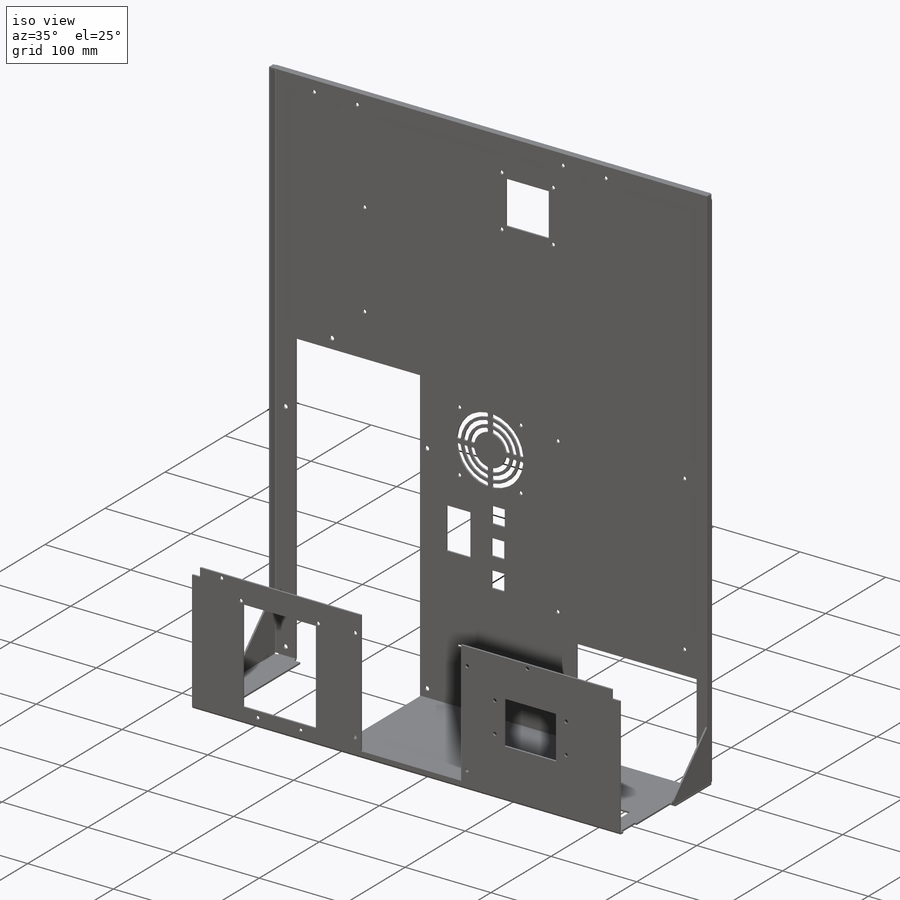
[diagram: iso view]
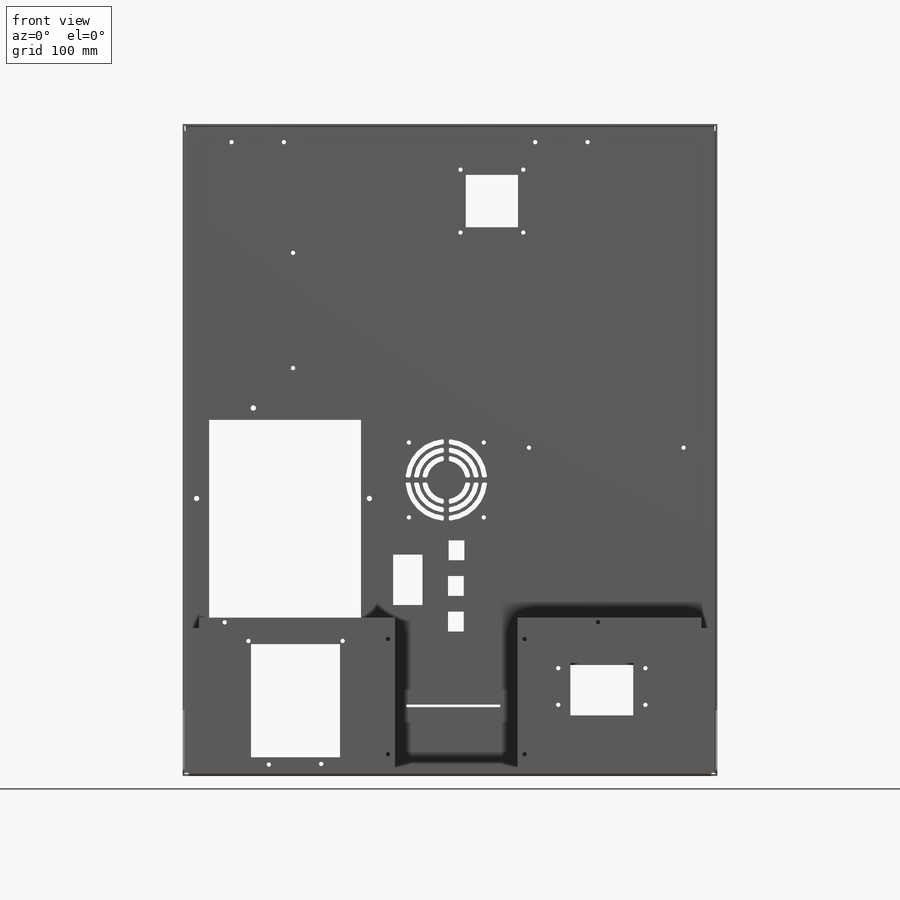
[diagram: front view]
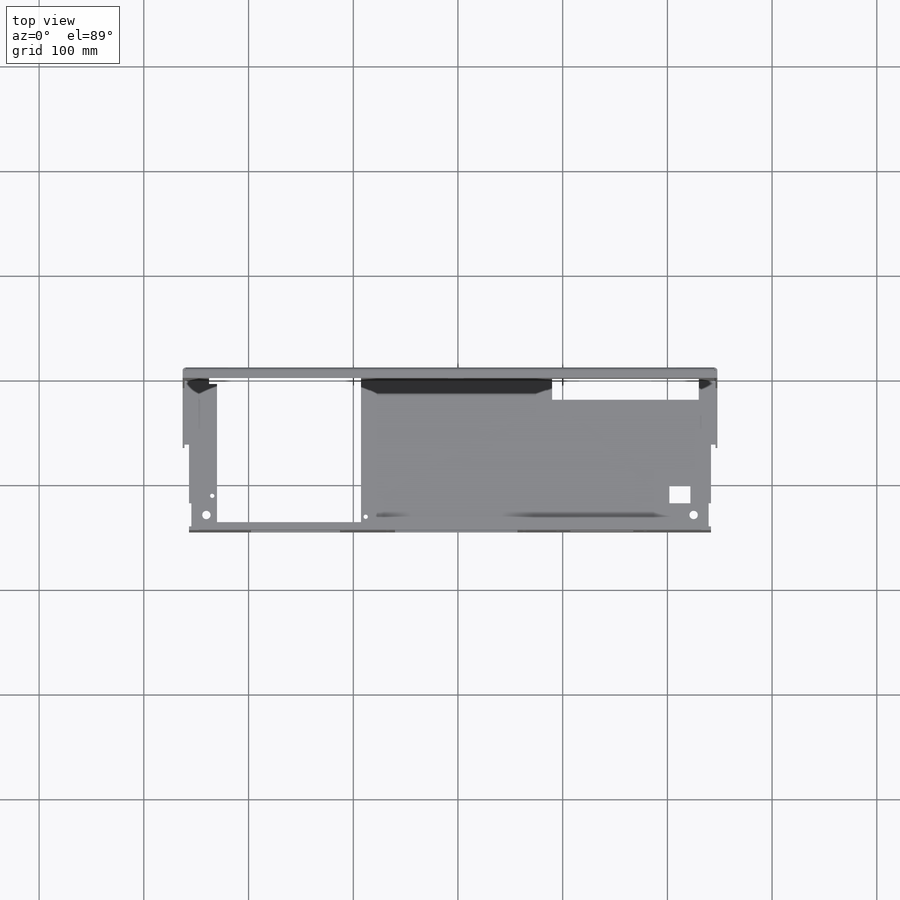
[diagram: top view]
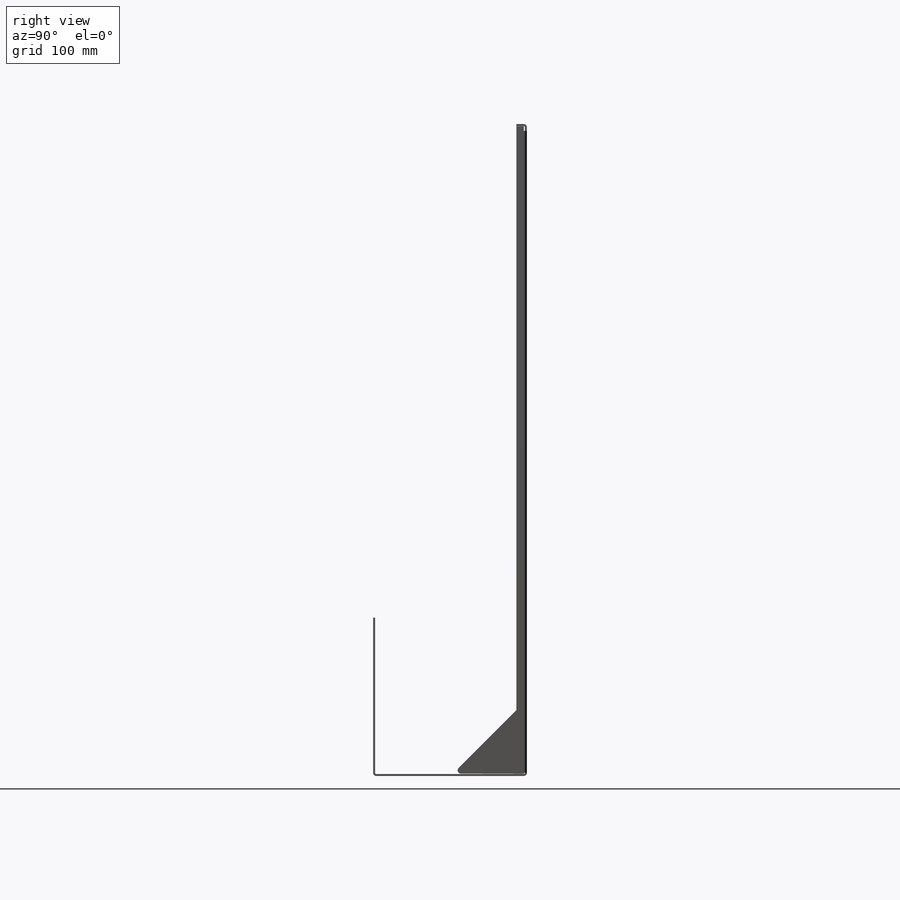
[diagram: right view]
SOLIDWORKS PART (.sldprt)
format: sldprt  version: not decoded by parser v0  size: 3,968,512 bytes
history: native  units: mm
features: sketch x129, sheet_metal_op x46, cut_extrude x33, material x1 + 39 further entries (+13 scaffold rows collapsed; 41 parser-record rows omitted)
feature tree (302):
  scaffold x13  (default folders/planes/origin — collapsed)
  material  "Material <not specified>"
  sketch  "Sketch1"  dims[c1.D1=500.0mm c1.D2=616.0mm c2.D1=2.54mm c2.D2=0.5 c2.D3=0.0mm c2.D6=500.0mm]
  sheet_metal_op  "Base-Flange1"
  sketch  "Sketch8"  dims[c1.D1=1.0mm c1.D4=90.0deg c1.D5=1.0 c1.D8=0.37mm c1.D9=0.37mm c2.D1=1.7mm c2.D2=500.0mm c2.D3=0.0mm c2.D6=10.0mm c2.D7=145.7mm c2.Edge-Flange3=0.0]
  sketch  "Sketch14"
  sheet_metal_op  "EdgeBend3"
  sketch  "Sketch18"  dims[c1.D14=4.08mm c1.D15=4.08mm c1.D20=4.08mm c1.D21=4.08mm c1.D25=4.08mm c1.D26=4.08mm c1.D27=4.08mm c1.D28=4.08mm c1.D29=4.08mm c1.D30=4.08mm c1.D31=4.08mm c1.D32=4.08mm c1.D10=4.08mm c1.D33=4.08mm c1.D34=4.08mm c1.D35=4.08mm c1.D1=117.0mm c1.D2=85.0mm c1.D3=15.0mm c1.D4=60.0mm c1.D5=55.0mm c1.D6=75.0mm c1.D7=60.0mm c1.D8=50.0mm c1.D9=~271.468973mm c2.D10=0.0mm c2.D9=117.0mm c2.D11=137.0mm c2.D12=5.0mm c2.D13=153.16mm c3.D11=108.0mm c3.D15=50.0mm c3.D16=117.0mm c3.D17=6.0mm c3.D18=6.0mm c3.D19=70.0mm c4.D16=90.0mm c4.D17=2.5mm c4.D18=2.5mm c4.D19=3.0mm c4.D20=~0.594959mm c5.D18=3.0mm c5.D22=50.0mm c5.D23=17.0mm c5.D24=7.0mm c5.D10=~13.10262mm c5.D33=~13.10262mm c5.D34=35.0mm c5.D35=65.0mm c5.D36=~185.551697mm c5.D37=138.16mm c5.D12=10.0mm c6.D37=5.1mm]
  cut_extrude  "Cut-Extrude1"  Depth=2mm
  sketch  "Sketch46"  dims[D1=22.0mm D2=22.0mm]
  sheet_metal_op  "HemBend1"  Edge-Flange4=0
  sketch  "Sketch50"
  sheet_metal_op  "EdgeBend4"
  sketch  "Sketch51"  dims[c1.D1=17.0mm c1.D3=11.0mm c1.D5=17.0mm c1.D6=17.0mm c1.D7=17.0mm c1.D8=17.0mm c1.D9=17.0mm c1.D10=11.0mm c1.D2=11.0mm c2.D3=~11.129102mm c2.D4=20.0mm c2.D5=53.0mm c2.D6=80.0mm c2.D7=200.0mm c2.D8=57.0mm c3.D6=20.0mm c3.D11=11.0mm]
  cut_extrude  "Cut-Extrude6"  Depth=10mm
  parser-record x41  (decoder bookkeeping rows leaked as tree rows — omitted from the tree; the rows remain in map.json)
  sketch  "Sketch18-1"  dims[c1.D14=4.08mm c1.D15=4.08mm c1.D20=4.08mm c1.D21=4.08mm c1.D25=4.08mm c1.D26=4.08mm c1.D27=4.08mm c1.D28=4.08mm c1.D29=4.08mm c1.D30=4.08mm c1.D31=4.08mm c1.D32=4.08mm c1.D10=4.08mm c1.D33=4.08mm c1.D34=4.08mm c1.D35=4.08mm c1.D1=117.0mm c1.D2=85.0mm c1.D3=15.0mm c1.D4=60.0mm c1.D5=55.0mm c1.D6=75.0mm c1.D7=60.0mm c1.D8=50.0mm c1.D9=~271.468973mm c2.D10=0.0mm c2.D9=117.0mm c2.D11=137.0mm c2.D12=5.0mm c2.D13=138.04mm c3.D11=108.0mm c3.D15=50.0mm c3.D16=117.0mm c3.D17=6.0mm c3.D18=6.0mm c3.D19=70.0mm c4.D16=90.0mm c4.D17=2.5mm c4.D18=2.5mm c4.D19=3.0mm c4.D20=~0.594959mm c5.D18=3.0mm c5.D22=52.0mm c5.D23=17.0mm c5.D24=5.0mm c5.D10=~13.10262mm c5.D33=~13.10262mm c5.D34=~35.83262mm c5.D35=64.27mm]
  sketch  "Sketch54"  dims[c1.D1=10.0mm c1.D2=20.0mm c1.D3=20.0mm c1.D4=170.0mm c1.D5=2.0mm c1.D6=2.0mm c1.D7=1.0mm c1.D8=1.0mm c2.D2=145.0mm]
  cut_extrude  "Cut-Extrude8"  Depth=340mm
  sketch  "Sketch18-2"  dims[c1.D14=4.08mm c1.D15=4.08mm c1.D20=4.08mm c1.D21=4.08mm c1.D25=4.08mm c1.D26=4.08mm c1.D27=4.08mm c1.D28=4.08mm c1.D29=4.08mm c1.D30=4.08mm c1.D31=4.08mm c1.D32=4.08mm c1.D10=4.08mm c1.D33=4.08mm c1.D34=4.08mm c1.D35=4.08mm c1.D1=117.0mm c1.D2=85.0mm c1.D3=15.0mm c1.D4=60.0mm c1.D5=55.0mm c1.D6=75.0mm c1.D7=60.0mm c1.D8=50.0mm c1.D9=~271.468973mm c2.D10=0.0mm c2.D9=117.0mm c2.D11=137.0mm c2.D12=5.0mm c2.D13=138.04mm c3.D11=108.0mm c3.D15=50.0mm c3.D16=117.0mm c3.D17=6.0mm c3.D18=6.0mm c3.D19=70.0mm c4.D16=90.0mm c4.D17=2.5mm c4.D18=2.5mm c4.D19=3.0mm c4.D20=~0.594959mm c5.D18=3.0mm c5.D22=52.0mm c5.D23=17.0mm c5.D24=5.0mm c5.D10=~13.10262mm c5.D33=~13.10262mm c5.D34=~35.83262mm c5.D35=64.27mm]
  sketch  "Sketch54-1"  dims[D1=10.0mm D2=20.0mm D3=20.0mm D4=~170.588362mm D5=2.0mm D6=2.0mm D7=1.0mm D8=1.0mm]
  sketch  "Sketch55"  dims[c1.D2=8.0mm c1.D3=4.0mm c1.D4=8.0mm c1.D5=8.0mm c1.D1=4.0mm c2.D3=2.0mm c2.D4=4.0mm c2.D5=5.0mm]
  cut_extrude  "Cut-Extrude10"  Depth=10mm
  sketch  "Sketch56"
  cut_extrude  "Cut-Extrude11"  Depth=10mm
  sketch  "Sketch57"  dims[c1.D1=4.08mm c1.D3=4.08mm c1.D6=4.08mm c1.D7=4.08mm c1.D2=4.5mm c1.D4=4.5mm c1.D5=~1.478052mm c2.D7=123.0mm]
  cut_extrude  "Cut-Extrude12"  Depth=10mm
  sketch  "Sketch58"  dims[D1=4.08mm D2=4.08mm]
  cut_extrude  "Cut-Extrude13"  Depth=10mm
  sketch  "Sketch65"  dims[c1.D1=5.0mm c1.D2=5.0mm c1.D4=5.0mm c2.D1=340.0mm c2.D2=10.5mm c2.D3=13.0mm c2.D4=12.5mm]
  cut_extrude  "Cut-Extrude14"  Depth=10mm
  sketch  "Sketch66"  dims[D1=4.08mm D2=4.08mm D3=4.08mm D4=4.08mm]
  cut_extrude  "Cut-Extrude15"  Depth=3.21412mm
  sketch  "Sketch67"  dims[c1.D1=4.08mm c1.D2=4.08mm c1.D3=4.08mm c1.D5=4.08mm c2.D2=2.0mm c2.D4=2.0mm c2.D5=2.5mm c3.D2=4.5mm]
  cut_extrude  "Cut-Extrude16"  Depth=3.21412mm Edge-Flange5=0
  sketch  "Sketch72"
  sketch  "Sketch73"
  sheet_metal_op  "EdgeBend5"
  sheet_metal_op  "EdgeBend6"
  sketch  "Sketch74"  dims[c1.D1=20.0mm c1.D2=4.08mm c1.D3=20.0mm c1.D4=20.0mm c1.D5=20.0mm c1.D6=20.0mm c2.D3=230.0mm c2.D4=28.0mm c2.D5=25.0mm c2.D6=25.0mm]
  cut_extrude  "Cut-Extrude17"  Depth=10mm
  sketch  "Sketch75"  dims[c1.D1=4.08mm c1.D2=4.08mm c1.D3=4.08mm c1.D4=4.08mm c1.D5=4.08mm c2.D2=145.0mm c2.D3=12.0mm c2.D4=253.0mm c2.D5=145.0mm]
  cut_extrude  "Cut-Extrude18"  Depth=10mm
  sketch  "Sketch76"  dims[D1=4.08mm]
  cut_extrude  "Cut-Extrude19"  Depth=10mm
  sketch  "Sketch78"  dims[c1.D5=4.08mm c1.D1=15.0mm c1.D2=15.0mm c1.D3=35.0mm c1.D4=15.0mm c1.D6=20.0mm c1.D7=20.0mm c1.D8=15.0mm c2.D6=5.0mm c2.D7=5.0mm c2.D8=5.0mm c2.D9=5.0mm]
  cut_extrude  "Cut-Extrude21"  Depth=10mm
  sketch  "Sketch79"  dims[D1=269.0mm]
  cut_extrude  "Cut-Extrude22"  Depth=10mm Edge-Flange6=0
  sketch  "Sketch82"
  sheet_metal_op  "EdgeBend7"
  sketch  "Sketch83"  dims[D1=4.08mm]
  cut_extrude  "Cut-Extrude23"  Depth=10mm
  sketch  "Sketch84"  dims[D1=3.0mm]
  cut_extrude  "Cut-Extrude24"  Depth=2mm
  sketch  "Sketch85"
  sketch  "Sketch86"
  cut_extrude  "Cut-Extrude25"  Depth=10mm
  sketch  "Sketch87"  dims[c1.D1=4.08mm c1.D2=4.08mm c2.D1=5.0mm]
  cut_extrude  "Cut-Extrude26"  Depth=10mm
  sketch  "Sketch88"  dims[D1=5.0mm]
  cut_extrude  "Cut-Extrude29"  Depth=10mm
  sketch  "Sketch89"  dims[D1=10.0mm D2=10.0mm D3=10.0mm D4=10.0mm]
  cut_extrude  "Cut-Extrude28"  Depth=5mm
  sketch  "Sketch91"  dims[D1=0.75mm D2=0.75mm D3=60.0mm D4=60.0mm]
  cut_extrude  "Cut-Extrude30"  Depth=150mm
  sketch  "Sketch99"  dims[c1.D11=1.5875mm c1.D12=2.286mm c1.D13=2.286mm c1.D14=2.286mm c1.D8=1.5875mm c1.D5=23.125mm c1.D10=4.08mm c2.D13=4.08mm c2.D8=4.7625mm c2.D9=~2.38125mm c2.D5=4.7625mm c2.D6=71.5mm c2.D7=35.75mm c3.D9=35.75mm c3.D10=71.5mm c3.D1=4.7625mm c3.D2=3.175mm c3.D3=4.7625mm c3.D4=3.175mm c3.D5=4.7625mm c3.D6=3.175mm c3.D7=4.7625mm c3.D8=3.175mm c4.D9=4.7625mm c4.D10=~2.38125mm c4.D12=4.0]
  cut_extrude  "Cut-Extrude32"  Depth=10mm
  sketch  "Sketch100"  dims[D1=10.0mm]
  cut_extrude  "Cut-Extrude33"  Depth=10mm
  sketch  "Sketch101"  dims[c1.D1=~121.492638mm c2.D1=45.0deg]
  cut_extrude  "Cut-Extrude34"  [1 undecoded]
  sketch  "Sketch102"  dims[D1=140.0mm D2=15.0mm D3=140.0mm]
  cut_extrude  "Cut-Extrude35"  Depth=20mm
  sketch  "Sketch103"  dims[D1=28.0mm D2=48.0mm]
  cut_extrude  "Cut-Extrude36"  Depth=62mm
  sketch  "Sketch104"  dims[c1.D1=19.0mm c1.D2=15.0mm c1.D3=15.0mm c1.D4=15.0mm c1.D5=15.0mm c1.D6=15.0mm c1.D7=15.0mm c1.D8=10.0mm c1.D9=10.0mm c1.D10=25.0mm c2.D3=19.0mm c2.D4=15.0mm c2.D6=19.0mm]
  cut_extrude  "Cut-Extrude37"  Depth=62mm
  sketch  "Sketch160"  dims[D1=3.2mm]
  cut_extrude  "Cut-Extrude41"  [1 undecoded]
  sketch  "Sketch161"  dims[D1=30.0mm D2=0.5mm D3=0.5mm D4=30.0mm D5=0.5mm D6=0.5mm D7=30.0mm D8=0.5mm D9=0.5mm D10=0.5mm D11=0.5mm D12=30.0mm]
  cut_extrude  "Cut-Extrude42"  Depth=10mm
  sketch  "Sketch162"  dims[D1=~8.172529mm]
  cut_extrude  "Cut-Extrude43"  Depth=10mm
  sketch  "Sketch163"
  cut_extrude  "Cut-Extrude44"  Depth=10mm
  sketch  "Sketch164"  dims[D3=2.5mm D1=6.0mm D2=6.0mm]
  cut_extrude  "Cut-Extrude45"  Depth=10mm
  sketch  "Bend-Lines1"
  sketch  "Bounding-Box1"
  sketch  "Sketch105"
  sketch  "Sketch106"
  sketch  "Sketch107"
  sketch  "Sketch141"
  sheet_metal_op  "Sheet-Metal1"
  "Flat-Pattern1"
  sketch  "Bend-Lines2"
  sketch  "Bounding-Box2"
  sheet_metal_op  "Sheet-Metal2"
  "Flat-Pattern1"
  sketch  "Bend-Lines2"
  sketch  "Bounding-Box2"
  sheet_metal_op  "Sheet-Metal4"
  "Flat-Pattern1"
  sketch  "Bend-Lines2"
  sketch  "Bounding-Box2"
  sheet_metal_op  "Sheet-Metal6"
  "Flat-Pattern1"
  sketch  "Bend-Lines2"
  sketch  "Bounding-Box2"
  sheet_metal_op  "Sheet-Metal21"
  "Flat-Pattern1"
  sketch  "Bend-Lines2"
  sketch  "Bounding-Box2"
  sheet_metal_op  "Sheet-Metal22"
  "Flat-Pattern1"
  sketch  "Bend-Lines2"
  sketch  "Bounding-Box2"
  sheet_metal_op  "Sheet-Metal24"
  "Flat-Pattern1"
  sketch  "Bend-Lines2"
  sketch  "Bounding-Box2"
  sheet_metal_op  "Sheet-Metal26"
  "Flat-Pattern1"
  sketch  "Bend-Lines2"
  sketch  "Bounding-Box2"
  sheet_metal_op  "Sheet-Metal27"
  "Flat-Pattern1"
  sketch  "Bend-Lines2"
  sketch  "Bounding-Box2"
  sheet_metal_op  "Sheet-Metal28"
  "Flat-Pattern1"
  sketch  "Bend-Lines2"
  sketch  "Bounding-Box2"
  sheet_metal_op  "Sheet-Metal29"
  "Flat-Pattern1"
  sketch  "Bend-Lines2"
  sketch  "Bounding-Box2"
  sheet_metal_op  "Sheet-Metal31"
  "Flat-Pattern1"
  sketch  "Bend-Lines2"
  sketch  "Bounding-Box2"
  sheet_metal_op  "Sheet-Metal32"
  "Flat-Pattern1"
  sketch  "Bend-Lines2"
  sketch  "Bounding-Box2"
  sheet_metal_op  "Sheet-Metal33"
  "Flat-Pattern1"
  sketch  "Bend-Lines2"
  sketch  "Bounding-Box2"
  sheet_metal_op  "Sheet-Metal34"
  "Flat-Pattern1"
  sketch  "Bend-Lines2"
  sketch  "Bounding-Box2"
  sheet_metal_op  "Sheet-Metal35"
  "Flat-Pattern1"
  sketch  "Bend-Lines2"
  sketch  "Bounding-Box2"
  sheet_metal_op  "Sheet-Metal36"
  "Flat-Pattern1"
  sketch  "Bend-Lines2"
  sketch  "Bounding-Box2"
  sheet_metal_op  "Sheet-Metal37"
  "Flat-Pattern1"
  sketch  "Bend-Lines2"
  sketch  "Bounding-Box2"
  sheet_metal_op  "Sheet-Metal39"
  "Flat-Pattern1"
  sketch  "Bend-Lines2"
  sketch  "Bounding-Box2"
  sheet_metal_op  "Sheet-Metal40"
  "Flat-Pattern1"
  sketch  "Bend-Lines2"
  sketch  "Bounding-Box2"
  sheet_metal_op  "Sheet-Metal41"
  "Flat-Pattern1"
  sketch  "Bend-Lines2"
  sketch  "Bounding-Box2"
  sheet_metal_op  "Sheet-Metal42"
  "Flat-Pattern1"
  sketch  "Bend-Lines2"
  sketch  "Bounding-Box2"
  sheet_metal_op  "Sheet-Metal43"
  "Flat-Pattern1"
  sketch  "Bend-Lines2"
  sketch  "Bounding-Box2"
  sheet_metal_op  "Sheet-Metal44"
  "Flat-Pattern1"
  sketch  "Bend-Lines2"
  sketch  "Bounding-Box2"
  sheet_metal_op  "Sheet-Metal45"
  "Flat-Pattern1"
  sketch  "Bend-Lines2"
  sketch  "Bounding-Box2"
  sheet_metal_op  "Sheet-Metal47"
  "Flat-Pattern1"
  sketch  "Bend-Lines2"
  sketch  "Bounding-Box2"
  sheet_metal_op  "Sheet-Metal48"
  "Flat-Pattern1"
  sketch  "Bend-Lines2"
  sketch  "Bounding-Box2"
  sheet_metal_op  "Sheet-Metal49"
  "Flat-Pattern1"
  sketch  "Bend-Lines2"
  sketch  "Bounding-Box2"
  sheet_metal_op  "Sheet-Metal51"
  "Flat-Pattern1"
  sketch  "Bend-Lines2"
  sketch  "Bounding-Box2"
  sheet_metal_op  "Sheet-Metal52"
  "Flat-Pattern1"
  sketch  "Bend-Lines2"
  sketch  "Bounding-Box2"
  sheet_metal_op  "Sheet-Metal53"
  "Flat-Pattern1"
  sketch  "Bend-Lines2"
  sketch  "Bounding-Box2"
  sheet_metal_op  "Sheet-Metal54"
  "Flat-Pattern1"
  sketch  "Bend-Lines2"
  sketch  "Bounding-Box2"
  sheet_metal_op  "Sheet-Metal55"
  "Flat-Pattern1"
  sketch  "Bend-Lines2"
  sketch  "Bounding-Box2"
  sheet_metal_op  "Sheet-Metal56"
  "Flat-Pattern1"
  sketch  "Bend-Lines2"
  sketch  "Bounding-Box2"
  sheet_metal_op  "Sheet-Metal60"
  "Flat-Pattern1"
  sketch  "Bend-Lines2"
  sketch  "Bounding-Box2"
  sheet_metal_op  "Sheet-Metal61"
  "Flat-Pattern1"
  sketch  "Bend-Lines2"
  sketch  "Bounding-Box2"
  sheet_metal_op  "Sheet-Metal62"
  "Flat-Pattern1"
  sketch  "Bend-Lines2"
  sketch  "Bounding-Box2"
  sheet_metal_op  "Sheet-Metal63"
  "Flat-Pattern1"
  sketch  "Bend-Lines2"
  sketch  "Bounding-Box2"
  sheet_metal_op  "Sheet-Metal64"
  "Flat-Pattern1"
  sketch  "Bend-Lines2"
  sketch  "Bounding-Box2"
decode coverage: 68 of 208 modeling features carry decoded parameters; 39 rows unclassified (native names shown)
note: ~ marks probable driven/reference dimensions
note: 2 parameter values undecoded
note: suppression state not decoded; provenance and decode notes live in map.json
